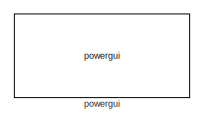
[diagram: root canvas - part 1/3, top center region]
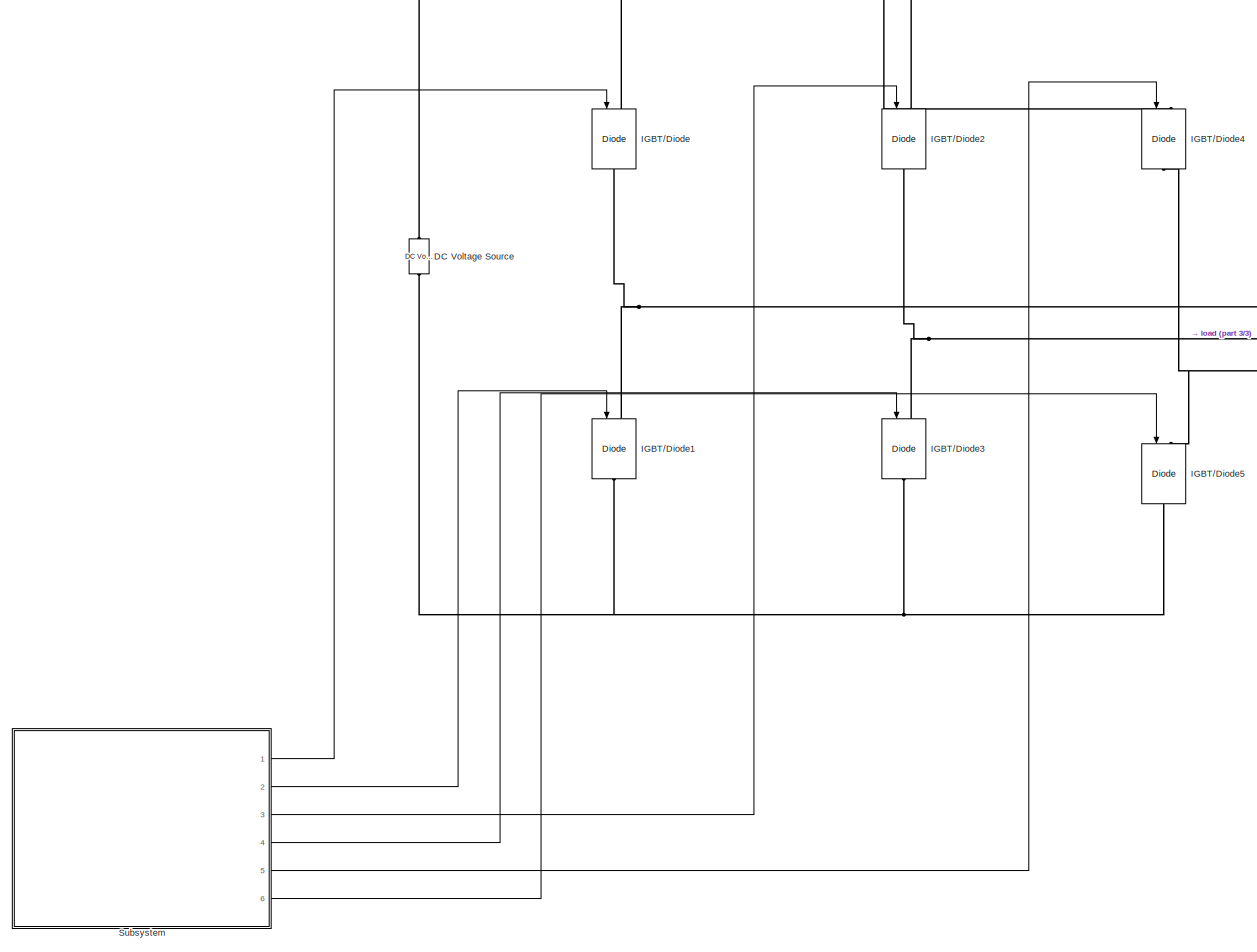
[diagram: root canvas - part 2/3, center side, full height]
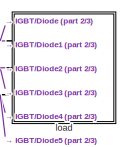
[diagram: root canvas - part 3/3, bottom right region]
MODEL slx_618c9ed726bd
KIND model
CONFIG AbsTol = auto
CONFIG EnableMultiTasking = off
CONFIG FixedStep = stepsize
CONFIG MaxStep = 2e-6
CONFIG MinStep = auto
CONFIG RelTol = 1e-3
CONFIG SampleTimeConstraint = Unconstrained
CONFIG SolverName = FixedStepAuto
CONFIG StartTime = 0.0
CONFIG StopTime = stoptime
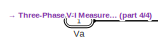
[diagram:  load - part 1/4, top left region]
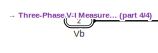
[diagram:  load - part 2/4, top left region]
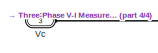
[diagram:  load - part 3/4, top left region]
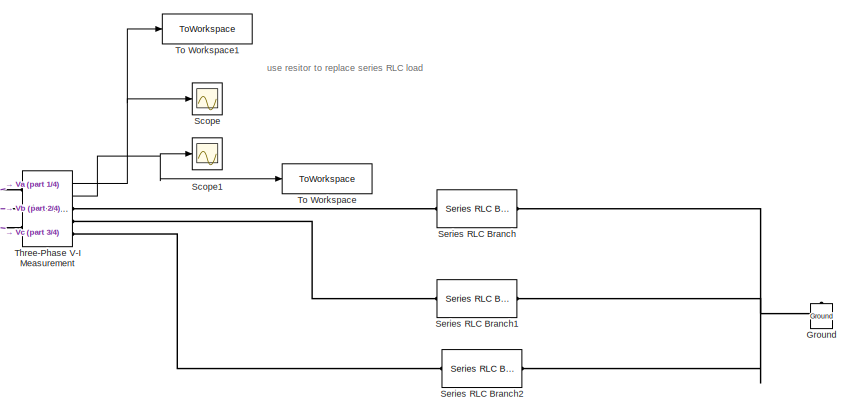
[diagram:  load - part 4/4, bottom right region]
BLOCK [SubSystem]  load
  Ports = [0, 0, 0, 0, 0, 3]
  RequestExecContextInheritance = off
BLOCK [Reference]  load/Ground  REF=spsGroundLib/Ground
  NameLocation = right
  Ports = [0, 0, 0, 0, 0, 1]
  SourceBlock = spsGroundLib/Ground
  SourceProductBaseCode = PS
  SourceType = Ground
BLOCK [Scope]  load/Scope
  Floating = off
  NumInputPorts = 1
  Ports = [1]
  ScopeSpecificationString = Simulink.scopes.TimeScopeBlockCfg('CurrentConfiguration', extmgr.ConfigurationSet(extmgr.Configuration('Core','General UI',true),extmgr.Configuration('Core','Source UI',true),extmgr.Configuration('Sources','WiredSimulink',true,'DataLoggingVariableName','ScopeData4'),extmgr.Configuration('Visuals','Time Domain',true,'SerializedDisplays',{struct('MinYLimReal','-650.03422','MaxYLimReal','650.03957','...<+1612ch>
BLOCK [Scope]  load/Scope1
  Floating = off
  NumInputPorts = 1
  Ports = [1]
  ScopeSpecificationString = Simulink.scopes.TimeScopeBlockCfg('CurrentConfiguration', extmgr.ConfigurationSet(extmgr.Configuration('Core','General UI',true,'FigureColor',[1 1 1]),extmgr.Configuration('Core','Source UI',true),extmgr.Configuration('Sources','WiredSimulink',true,'DataLoggingVariableName','ScopeData5','DataLogging',true,'DataLoggingSaveFormat','StructureWithTime'),extmgr.Configuration('Visuals','Time Domain',tru...<+1846ch>
BLOCK [Reference]  load/Series RLC Branch  REF=spsSeriesRLCBranchLib/Series RLC Branch
  Ports = [0, 0, 0, 0, 0, 1, 1]
  SourceBlock = spsSeriesRLCBranchLib/Series RLC Branch
  SourceProductBaseCode = PS
  SourceType = Series RLC Branch
BLOCK [Reference]  load/Series RLC Branch1  REF=spsSeriesRLCBranchLib/Series RLC Branch
  Ports = [0, 0, 0, 0, 0, 1, 1]
  SourceBlock = spsSeriesRLCBranchLib/Series RLC Branch
  SourceProductBaseCode = PS
  SourceType = Series RLC Branch
BLOCK [Reference]  load/Series RLC Branch2  REF=spsSeriesRLCBranchLib/Series RLC Branch
  Ports = [0, 0, 0, 0, 0, 1, 1]
  SourceBlock = spsSeriesRLCBranchLib/Series RLC Branch
  SourceProductBaseCode = PS
  SourceType = Series RLC Branch
BLOCK [Reference]  load/Three-Phase V-I Measurement  REF=spsThreePhaseVIMeasurementLib/Three-Phase
V-I Measurement
  Ports = [0, 2, 0, 0, 0, 3, 3]
  SourceBlock = spsThreePhaseVIMeasurementLib/Three-Phase\nV-I Measurement
  SourceProductBaseCode = PS
  SourceType = Three-Phase VI Measurement
BLOCK [ToWorkspace]  load/To Workspace
  FixptAsFi = on
  MaxDataPoints = inf
  Ports = [1]
  SampleTime = -1
  Save2DSignal = 2-D array (concatenate along first dimension)
  VariableName = Iout
BLOCK [ToWorkspace]  load/To Workspace1
  FixptAsFi = on
  MaxDataPoints = inf
  Ports = [1]
  SampleTime = -1
  Save2DSignal = 2-D array (concatenate along first dimension)
  VariableName = Vanout
BLOCK [PMIOPort]  load/Va
  Side = Left
BLOCK [PMIOPort]  load/Vb
  Port = 2
  Side = Left
BLOCK [PMIOPort]  load/Vc
  Port = 3
  Side = Left
BLOCK [Reference] DC Voltage Source  REF=spsDCVoltageSourceLib/DC Voltage Source
  Ports = [0, 0, 0, 0, 0, 1, 1]
  SourceBlock = spsDCVoltageSourceLib/DC Voltage Source
  SourceProductBaseCode = PS
  SourceType = DC Voltage Source
BLOCK [Reference] IGBT//Diode  REF=spsIGBTDiodeLib/IGBT//Diode
  NameLocation = left
  Ports = [1, 0, 0, 0, 0, 1, 1]
  SourceBlock = spsIGBTDiodeLib/IGBT//Diode
  SourceProductBaseCode = PS
  SourceType = IGBT/Diode
BLOCK [Reference] IGBT//Diode1  REF=spsIGBTDiodeLib/IGBT//Diode
  NameLocation = left
  Ports = [1, 0, 0, 0, 0, 1, 1]
  SourceBlock = spsIGBTDiodeLib/IGBT//Diode
  SourceProductBaseCode = PS
  SourceType = IGBT/Diode
BLOCK [Reference] IGBT//Diode2  REF=spsIGBTDiodeLib/IGBT//Diode
  NameLocation = left
  Ports = [1, 0, 0, 0, 0, 1, 1]
  SourceBlock = spsIGBTDiodeLib/IGBT//Diode
  SourceProductBaseCode = PS
  SourceType = IGBT/Diode
BLOCK [Reference] IGBT//Diode3  REF=spsIGBTDiodeLib/IGBT//Diode
  NameLocation = left
  Ports = [1, 0, 0, 0, 0, 1, 1]
  SourceBlock = spsIGBTDiodeLib/IGBT//Diode
  SourceProductBaseCode = PS
  SourceType = IGBT/Diode
BLOCK [Reference] IGBT//Diode4  REF=spsIGBTDiodeLib/IGBT//Diode
  NameLocation = left
  Ports = [1, 0, 0, 0, 0, 1, 1]
  SourceBlock = spsIGBTDiodeLib/IGBT//Diode
  SourceProductBaseCode = PS
  SourceType = IGBT/Diode
BLOCK [Reference] IGBT//Diode5  REF=spsIGBTDiodeLib/IGBT//Diode
  NameLocation = left
  Ports = [1, 0, 0, 0, 0, 1, 1]
  SourceBlock = spsIGBTDiodeLib/IGBT//Diode
  SourceProductBaseCode = PS
  SourceType = IGBT/Diode
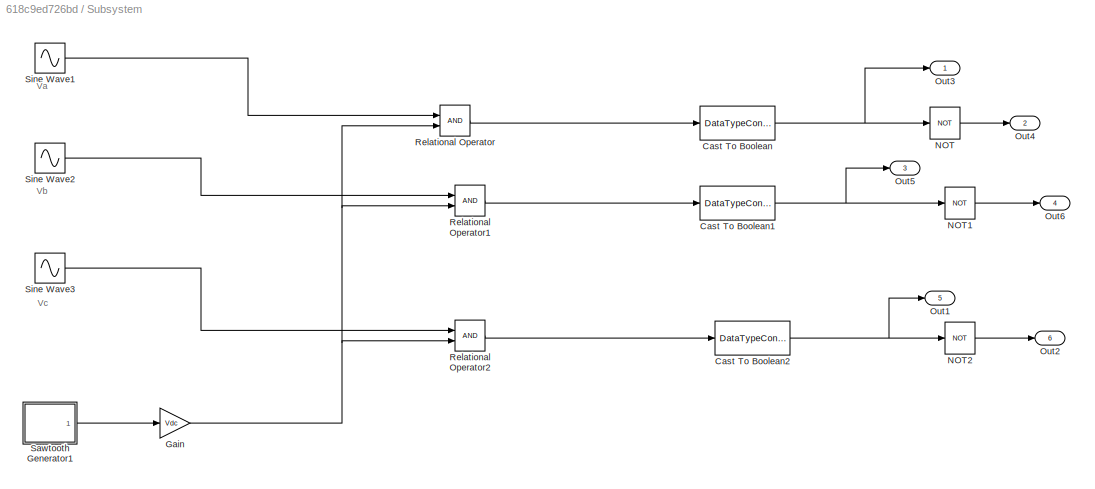
BLOCK [SubSystem] Subsystem
  Ports = [0, 6]
  RequestExecContextInheritance = off
BLOCK [DataTypeConversion] Subsystem/Cast To Boolean
  OutDataTypeStr = boolean
  RndMeth = Floor
  SaturateOnIntegerOverflow = off
BLOCK [DataTypeConversion] Subsystem/Cast To Boolean1
  OutDataTypeStr = boolean
  RndMeth = Floor
  SaturateOnIntegerOverflow = off
BLOCK [DataTypeConversion] Subsystem/Cast To Boolean2
  OutDataTypeStr = boolean
  RndMeth = Floor
  SaturateOnIntegerOverflow = off
BLOCK [Gain] Subsystem/Gain
  Gain = Vdc
BLOCK [Logic] Subsystem/NOT
  AllPortsSameDT = off
  IconShape = distinctive
  Operator = NOT
  OutDataTypeStr = boolean
  Ports = [1, 1]
BLOCK [Logic] Subsystem/NOT1
  AllPortsSameDT = off
  IconShape = distinctive
  Operator = NOT
  OutDataTypeStr = boolean
  Ports = [1, 1]
BLOCK [Logic] Subsystem/NOT2
  AllPortsSameDT = off
  IconShape = distinctive
  Operator = NOT
  OutDataTypeStr = boolean
  Ports = [1, 1]
BLOCK [Outport] Subsystem/Out1
  Port = 5
BLOCK [Outport] Subsystem/Out2
  Port = 6
BLOCK [Outport] Subsystem/Out3
BLOCK [Outport] Subsystem/Out4
  Port = 2
BLOCK [Outport] Subsystem/Out5
  Port = 3
BLOCK [Outport] Subsystem/Out6
  Port = 4
BLOCK [RelationalOperator] Subsystem/Relational Operator
  InputSameDT = off
  OutDataTypeStr = boolean
  Ports = [2, 1]
  RndMeth = Simplest
BLOCK [RelationalOperator] Subsystem/Relational Operator1
  InputSameDT = off
  OutDataTypeStr = boolean
  Ports = [2, 1]
  RndMeth = Simplest
BLOCK [RelationalOperator] Subsystem/Relational Operator2
  InputSameDT = off
  OutDataTypeStr = boolean
  Ports = [2, 1]
  RndMeth = Simplest
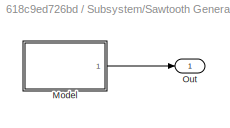
BLOCK [SubSystem] Subsystem/Sawtooth Generator1
  AncestorBlock = spsSawtoothGeneratorLib/Sawtooth\nGenerator
  CloseFcn = sps_rtmsupport('CloseFcn', gcbh);
  CopyFcn = sps_rtmsupport('CopyFcn', gcbh);
  DeleteFcn = sps_rtmsupport('DeleteFcn', gcbh);
  DialogController = POWERSYS.PowerSysDialog
  LoadFcn = sps_rtmsupport('LoadFcn', gcbh);
  ModelCloseFcn = sps_rtmsupport('ModelCloseFcn', gcbh);
  NameChangeFcn = sps_rtmsupport('NameChangeFcn', gcbh);
  OpenFcn = sps_rtmsupport('OpenFcn', gcbh, []);
  Ports = [0, 1]
  PostSaveFcn = sps_rtmsupport('PostSaveFcn', gcbh);
  PreCopyFcn = sps_rtmsupport('PreCopyFcn', gcbh);
  PreDeleteFcn = sps_rtmsupport('PreDeleteFcn', gcbh);
  PreSaveFcn = sps_rtmsupport('PreSaveFcn', gcbh);
  RequestExecContextInheritance = off
  StartFcn = sps_rtmsupport('StartFcn', gcbh);
  StopFcn = sps_rtmsupport('StopFcn', gcbh);
  UndoDeleteFcn = sps_rtmsupport('UndoDeleteFcn', gcbh);
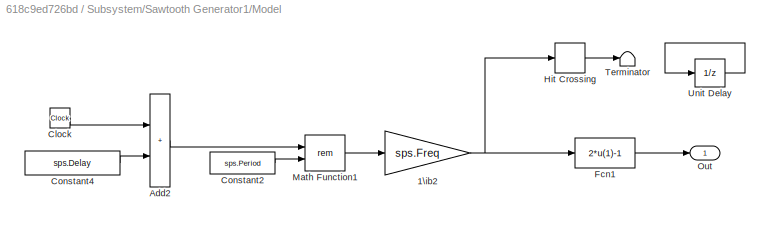
BLOCK [SubSystem] Subsystem/Sawtooth Generator1/Model
  AncestorBlock = spsSawtoothGeneratorModel/Continuous
  Ports = [0, 1]
  RequestExecContextInheritance = off
BLOCK [Gain] Subsystem/Sawtooth Generator1/Model/1\ib2
  Gain = sps.Freq
  NameLocation = top
  OutDataTypeStr = Inherit: Same as input
  ParamDataTypeStr = Inherit: Same as input
  SaturateOnIntegerOverflow = on
BLOCK [Sum] Subsystem/Sawtooth Generator1/Model/Add2
  IconShape = rectangular
  Ports = [2, 1]
BLOCK [Clock] Subsystem/Sawtooth Generator1/Model/Clock
  Decimation = 1
  NameLocation = top
BLOCK [Constant] Subsystem/Sawtooth Generator1/Model/Constant2
  SampleTime = 0
  Value = sps.Period
BLOCK [Constant] Subsystem/Sawtooth Generator1/Model/Constant4
  SampleTime = 0
  Value = sps.Delay
BLOCK [Fcn] Subsystem/Sawtooth Generator1/Model/Fcn1
  Expr = 2*u(1)-1
BLOCK [HitCross] Subsystem/Sawtooth Generator1/Model/Hit Crossing
  Ports = [1, 1]
BLOCK [Math] Subsystem/Sawtooth Generator1/Model/Math Function1
  Operator = rem
  Ports = [2, 1]
  SignedPower = on
BLOCK [Outport] Subsystem/Sawtooth Generator1/Model/Out
BLOCK [Terminator] Subsystem/Sawtooth Generator1/Model/Terminator
BLOCK [UnitDelay] Subsystem/Sawtooth Generator1/Model/Unit Delay
  HasFrameUpgradeWarning = on
  SampleTime = u_sampletime
BLOCK [Outport] Subsystem/Sawtooth Generator1/Out
  VectorParamsAs1DForOutWhenUnconnected = off
BLOCK [Sin] Subsystem/Sine Wave1
  Amplitude = V
  Frequency = 2*pi*frequency
  Ports = [0, 1]
  SampleTime = 0
BLOCK [Sin] Subsystem/Sine Wave2
  Amplitude = V
  Frequency = 2*pi*frequency
  Phase = -2*pi/3
  Ports = [0, 1]
  SampleTime = 0
BLOCK [Sin] Subsystem/Sine Wave3
  Amplitude = V
  Frequency = 2*pi*frequency
  Phase = -4*pi/3
  Ports = [0, 1]
  SampleTime = 0
BLOCK [Reference] powergui  REF=spspowerguiLib/powergui
  Ports = []
  Priority = 1
  SourceBlock = spspowerguiLib/powergui
  SourceProductBaseCode = PS
  SourceType = PSB option menu block
ANNOTATION  load: use resitor to replace series RLC load
ANNOTATION Subsystem: Va
ANNOTATION Subsystem: Vb
ANNOTATION Subsystem: Vc
NET  load/Three-Phase V-I Measurement:1 ->  load/Scope:1,  load/To Workspace1:1
NET  load/Three-Phase V-I Measurement:2 ->  load/Scope1:1,  load/To Workspace:1
NET Subsystem/Cast To Boolean1:1 -> Subsystem/NOT1:1, Subsystem/Out5:1
NET Subsystem/Cast To Boolean2:1 -> Subsystem/NOT2:1, Subsystem/Out1:1
NET Subsystem/Cast To Boolean:1 -> Subsystem/NOT:1, Subsystem/Out3:1
NET Subsystem/Gain:1 -> Subsystem/Relational Operator1:2, Subsystem/Relational Operator2:2, Subsystem/Relational Operator:2
LINE Subsystem/NOT1:1 -> Subsystem/Out6:1
LINE Subsystem/NOT2:1 -> Subsystem/Out2:1
LINE Subsystem/NOT:1 -> Subsystem/Out4:1
LINE Subsystem/Relational Operator1:1 -> Subsystem/Cast To Boolean1:1
LINE Subsystem/Relational Operator2:1 -> Subsystem/Cast To Boolean2:1
LINE Subsystem/Relational Operator:1 -> Subsystem/Cast To Boolean:1
LINE Subsystem/Sawtooth Generator1:1 -> Subsystem/Gain:1
LINE Subsystem/Sine Wave1:1 -> Subsystem/Relational Operator:1
LINE Subsystem/Sine Wave2:1 -> Subsystem/Relational Operator1:1
LINE Subsystem/Sine Wave3:1 -> Subsystem/Relational Operator2:1
LINE Subsystem:1 -> IGBT//Diode:1
LINE Subsystem:2 -> IGBT//Diode1:1
LINE Subsystem:3 -> IGBT//Diode2:1
LINE Subsystem:4 -> IGBT//Diode3:1
LINE Subsystem:5 -> IGBT//Diode4:1
LINE Subsystem:6 -> IGBT//Diode5:1
PNET net1:  load/Ground:LConn1 --  load/Series RLC Branch1:RConn1 --  load/Series RLC Branch2:RConn1 --  load/Series RLC Branch:RConn1
PLINE  load/Series RLC Branch1:LConn1 --  load/Three-Phase V-I Measurement:RConn2
PLINE  load/Series RLC Branch2:LConn1 --  load/Three-Phase V-I Measurement:RConn3
PLINE  load/Series RLC Branch:LConn1 --  load/Three-Phase V-I Measurement:RConn1
PLINE  load/Three-Phase V-I Measurement:LConn1 --  load/Va:RConn1
PLINE  load/Three-Phase V-I Measurement:LConn2 --  load/Vb:RConn1
PLINE  load/Three-Phase V-I Measurement:LConn3 --  load/Vc:RConn1
PNET net2:  load:LConn1 -- IGBT//Diode1:LConn1 -- IGBT//Diode:RConn1
PNET net3:  load:LConn2 -- IGBT//Diode2:RConn1 -- IGBT//Diode3:LConn1
PNET net4:  load:LConn3 -- IGBT//Diode4:RConn1 -- IGBT//Diode5:LConn1
PNET net5: DC Voltage Source:LConn1 -- IGBT//Diode1:RConn1 -- IGBT//Diode3:RConn1 -- IGBT//Diode5:RConn1
PNET net6: DC Voltage Source:RConn1 -- IGBT//Diode2:LConn1 -- IGBT//Diode4:LConn1 -- IGBT//Diode:LConn1
note: NET lines group one-source signal fan-out (src -> all destinations, sorted); 1:1 wires keep LINE; PNET lines group multi-terminal physical nets as a canonical sorted terminal list (undirected conserving connections); 2-terminal nets keep the pairwise PLINE form
